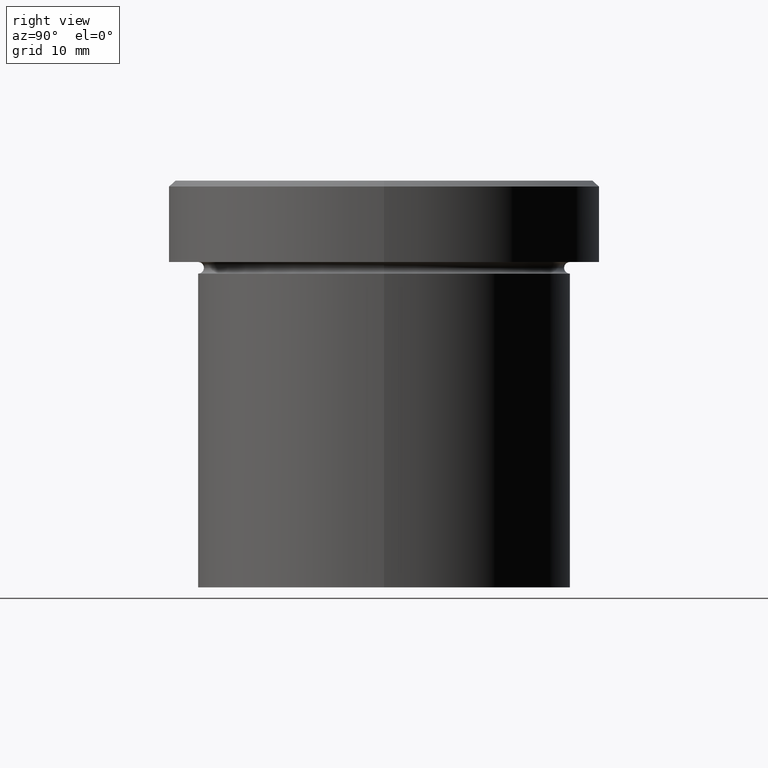
[diagram: clean part render]
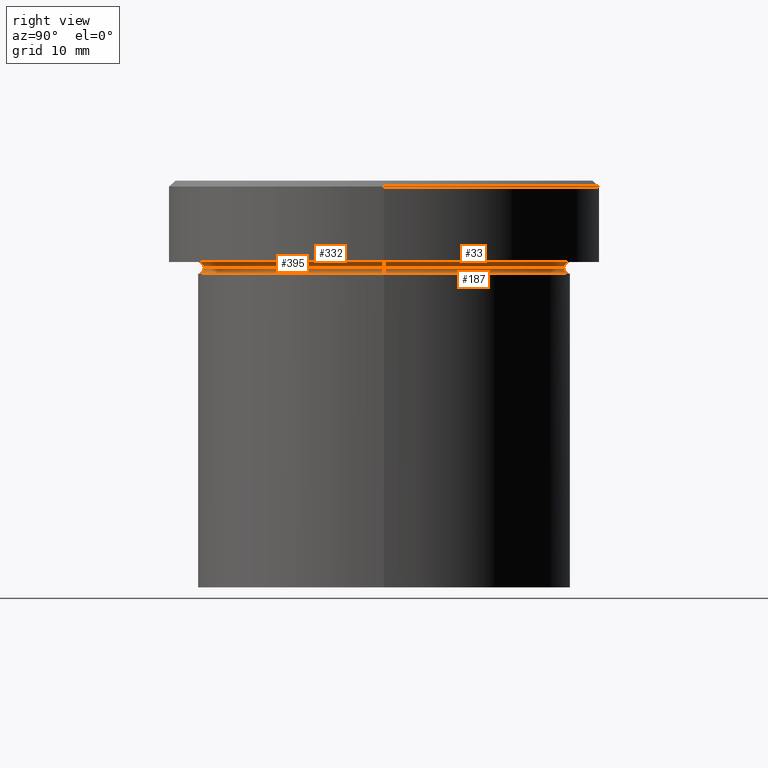
[diagram: same view with one multi-face feature highlighted, each face labeled with its STEP entity id]
A machine part, right view. The highlighted faces form ONE feature: a constant-radius fillet chain: 4 tangent blend faces with common blend radius 0.5 mm. The faces share edges in the B-rep.
Their STEP definitions:
[1] entity #187 (Torus):
#10 = VERTEX_POINT ( 'NONE', #344 ) ;
#34 = DIRECTION ( 'NONE',  ( 1.000000000000000000, 0.000000000000000000, 0.000000000000000000 ) ) ;
#37 = DIRECTION ( 'NONE',  ( 1.000000000000000000, 0.000000000000000000, 0.000000000000000000 ) ) ;
#44 = ORIENTED_EDGE ( 'NONE', *, *, #92, .T. ) ;
#47 = AXIS2_PLACEMENT_3D ( 'NONE', #81, #310, #271 ) ;
#49 = ORIENTED_EDGE ( 'NONE', *, *, #285, .T. ) ;
#51 = ORIENTED_EDGE ( 'NONE', *, *, #75, .F. ) ;
#69 = DIRECTION ( 'NONE',  ( 0.000000000000000000, -1.000000000000000000, 0.000000000000000000 ) ) ;
#75 = EDGE_CURVE ( 'NONE', #106, #140, #208, .T. ) ;
#77 = TOROIDAL_SURFACE ( 'NONE', #130, 16.00000000000000000, 0.5000000000000000000 ) ;
#81 = CARTESIAN_POINT ( 'NONE',  ( -16.00000000000000000, 1.959434878635765131E-15, -7.500000000000000000 ) ) ;
#92 = EDGE_CURVE ( 'NONE', #10, #229, #96, .T. ) ;
#96 = CIRCLE ( 'NONE', #179, 16.00000000000000000 ) ;
#99 = DIRECTION ( 'NONE',  ( -0.000000000000000000, -0.000000000000000000, 1.000000000000000000 ) ) ;
#105 = ORIENTED_EDGE ( 'NONE', *, *, #210, .F. ) ;
#106 = VERTEX_POINT ( 'NONE', #134 ) ;
#130 = AXIS2_PLACEMENT_3D ( 'NONE', #176, #207, #275 ) ;
#132 = DIRECTION ( 'NONE',  ( 0.000000000000000000, 0.000000000000000000, -1.000000000000000000 ) ) ;
#134 = CARTESIAN_POINT ( 'NONE',  ( 15.50000000000000000, 0.000000000000000000, -7.500000000000000000 ) ) ;
#140 = VERTEX_POINT ( 'NONE', #243 ) ;
#152 = CARTESIAN_POINT ( 'NONE',  ( -16.00000000000000000, 1.959434878635765131E-15, -8.000000000000000000 ) ) ;
#176 = CARTESIAN_POINT ( 'NONE',  ( 0.000000000000000000, 0.000000000000000000, -7.500000000000000000 ) ) ;
#179 = AXIS2_PLACEMENT_3D ( 'NONE', #292, #199, #37 ) ;
#187 = ADVANCED_FACE ( 'NONE', ( #242 ), #77, .F. ) ;
#199 = DIRECTION ( 'NONE',  ( -0.000000000000000000, -0.000000000000000000, 1.000000000000000000 ) ) ;
#207 = DIRECTION ( 'NONE',  ( -0.000000000000000000, -0.000000000000000000, 1.000000000000000000 ) ) ;
#208 = CIRCLE ( 'NONE', #312, 15.50000000000000000 ) ;
#210 = EDGE_CURVE ( 'NONE', #140, #229, #408, .T. ) ;
#216 = CIRCLE ( 'NONE', #306, 0.5000000000000004441 ) ;
#223 = CARTESIAN_POINT ( 'NONE',  ( 16.00000000000000000, 0.000000000000000000, -7.500000000000000000 ) ) ;
#229 = VERTEX_POINT ( 'NONE', #152 ) ;
#242 = FACE_OUTER_BOUND ( 'NONE', #307, .T. ) ;
#243 = CARTESIAN_POINT ( 'NONE',  ( -15.50000000000000000, 1.928818708657081344E-15, -7.500000000000000000 ) ) ;
#271 = DIRECTION ( 'NONE',  ( -1.000000000000000000, 1.224646799147349509E-16, 0.000000000000000000 ) ) ;
#275 = DIRECTION ( 'NONE',  ( 1.000000000000000000, 0.000000000000000000, 0.000000000000000000 ) ) ;
#285 = EDGE_CURVE ( 'NONE', #106, #10, #216, .T. ) ;
#292 = CARTESIAN_POINT ( 'NONE',  ( 0.000000000000000000, 0.000000000000000000, -8.000000000000000000 ) ) ;
#306 = AXIS2_PLACEMENT_3D ( 'NONE', #223, #69, #132 ) ;
#307 = EDGE_LOOP ( 'NONE', ( #105, #51, #49, #44 ) ) ;
#310 = DIRECTION ( 'NONE',  ( 1.224646799147353207E-16, 1.000000000000000000, 0.000000000000000000 ) ) ;
#312 = AXIS2_PLACEMENT_3D ( 'NONE', #389, #99, #34 ) ;
#344 = CARTESIAN_POINT ( 'NONE',  ( 16.00000000000000000, 0.000000000000000000, -8.000000000000000000 ) ) ;
#389 = CARTESIAN_POINT ( 'NONE',  ( 0.000000000000000000, 0.000000000000000000, -7.500000000000000000 ) ) ;
#408 = CIRCLE ( 'NONE', #47, 0.5000000000000004441 ) ;
[2] entity #33 (Torus):
#29 = CARTESIAN_POINT ( 'NONE',  ( 16.00000000000000000, 1.959434878635765131E-15, -6.999999999999999112 ) ) ;
#30 = DIRECTION ( 'NONE',  ( -1.000000000000000000, 0.000000000000000000, 0.000000000000000000 ) ) ;
#32 = CARTESIAN_POINT ( 'NONE',  ( 0.000000000000000000, 0.000000000000000000, -7.500000000000000000 ) ) ;
#33 = ADVANCED_FACE ( 'NONE', ( #281 ), #277, .F. ) ;
#34 = DIRECTION ( 'NONE',  ( 1.000000000000000000, 0.000000000000000000, 0.000000000000000000 ) ) ;
#67 = EDGE_CURVE ( 'NONE', #106, #359, #262, .T. ) ;
#75 = EDGE_CURVE ( 'NONE', #106, #140, #208, .T. ) ;
#83 = CARTESIAN_POINT ( 'NONE',  ( -16.00000000000000000, 0.000000000000000000, -7.500000000000000000 ) ) ;
#99 = DIRECTION ( 'NONE',  ( -0.000000000000000000, -0.000000000000000000, 1.000000000000000000 ) ) ;
#106 = VERTEX_POINT ( 'NONE', #134 ) ;
#107 = AXIS2_PLACEMENT_3D ( 'NONE', #83, #116, #331 ) ;
#115 = VERTEX_POINT ( 'NONE', #358 ) ;
#116 = DIRECTION ( 'NONE',  ( -0.000000000000000000, -1.000000000000000000, -0.000000000000000000 ) ) ;
#124 = DIRECTION ( 'NONE',  ( -1.000000000000000000, 0.000000000000000000, 0.000000000000000000 ) ) ;
#125 = DIRECTION ( 'NONE',  ( 0.000000000000000000, 0.000000000000000000, -1.000000000000000000 ) ) ;
#134 = CARTESIAN_POINT ( 'NONE',  ( 15.50000000000000000, 0.000000000000000000, -7.500000000000000000 ) ) ;
#140 = VERTEX_POINT ( 'NONE', #243 ) ;
#150 = ORIENTED_EDGE ( 'NONE', *, *, #180, .T. ) ;
#180 = EDGE_CURVE ( 'NONE', #140, #115, #388, .T. ) ;
#197 = CARTESIAN_POINT ( 'NONE',  ( 0.000000000000000000, 0.000000000000000000, -6.999999999999999112 ) ) ;
#208 = CIRCLE ( 'NONE', #312, 15.50000000000000000 ) ;
#213 = AXIS2_PLACEMENT_3D ( 'NONE', #32, #125, #30 ) ;
#224 = AXIS2_PLACEMENT_3D ( 'NONE', #197, #386, #124 ) ;
#236 = ORIENTED_EDGE ( 'NONE', *, *, #67, .F. ) ;
#243 = CARTESIAN_POINT ( 'NONE',  ( -15.50000000000000000, 1.928818708657081344E-15, -7.500000000000000000 ) ) ;
#251 = CIRCLE ( 'NONE', #224, 16.00000000000000000 ) ;
#253 = DIRECTION ( 'NONE',  ( -1.224646799147353207E-16, 1.000000000000000000, 0.000000000000000000 ) ) ;
#262 = CIRCLE ( 'NONE', #391, 0.5000000000000004441 ) ;
#277 = TOROIDAL_SURFACE ( 'NONE', #213, 16.00000000000000000, 0.5000000000000000000 ) ;
#281 = FACE_OUTER_BOUND ( 'NONE', #299, .T. ) ;
#288 = CARTESIAN_POINT ( 'NONE',  ( 16.00000000000000000, 1.959434878635765131E-15, -7.500000000000000000 ) ) ;
#299 = EDGE_LOOP ( 'NONE', ( #236, #364, #150, #393 ) ) ;
#312 = AXIS2_PLACEMENT_3D ( 'NONE', #389, #99, #34 ) ;
#320 = DIRECTION ( 'NONE',  ( -1.000000000000000000, -1.224646799147349509E-16, 0.000000000000000000 ) ) ;
#331 = DIRECTION ( 'NONE',  ( 0.000000000000000000, 0.000000000000000000, -1.000000000000000000 ) ) ;
#351 = EDGE_CURVE ( 'NONE', #359, #115, #251, .T. ) ;
#358 = CARTESIAN_POINT ( 'NONE',  ( -16.00000000000000000, 0.000000000000000000, -6.999999999999999112 ) ) ;
#359 = VERTEX_POINT ( 'NONE', #29 ) ;
#364 = ORIENTED_EDGE ( 'NONE', *, *, #75, .T. ) ;
#386 = DIRECTION ( 'NONE',  ( -0.000000000000000000, -0.000000000000000000, 1.000000000000000000 ) ) ;
#388 = CIRCLE ( 'NONE', #107, 0.5000000000000004441 ) ;
#389 = CARTESIAN_POINT ( 'NONE',  ( 0.000000000000000000, 0.000000000000000000, -7.500000000000000000 ) ) ;
#391 = AXIS2_PLACEMENT_3D ( 'NONE', #288, #253, #320 ) ;
#393 = ORIENTED_EDGE ( 'NONE', *, *, #351, .F. ) ;
[3] entity #395 (Torus):
#4 = CARTESIAN_POINT ( 'NONE',  ( 0.000000000000000000, 0.000000000000000000, -7.500000000000000000 ) ) ;
#29 = CARTESIAN_POINT ( 'NONE',  ( 16.00000000000000000, 1.959434878635765131E-15, -6.999999999999999112 ) ) ;
#43 = TOROIDAL_SURFACE ( 'NONE', #131, 16.00000000000000000, 0.5000000000000000000 ) ;
#67 = EDGE_CURVE ( 'NONE', #106, #359, #262, .T. ) ;
#83 = CARTESIAN_POINT ( 'NONE',  ( -16.00000000000000000, 0.000000000000000000, -7.500000000000000000 ) ) ;
#106 = VERTEX_POINT ( 'NONE', #134 ) ;
#107 = AXIS2_PLACEMENT_3D ( 'NONE', #83, #116, #331 ) ;
#115 = VERTEX_POINT ( 'NONE', #358 ) ;
#116 = DIRECTION ( 'NONE',  ( -0.000000000000000000, -1.000000000000000000, -0.000000000000000000 ) ) ;
#118 = DIRECTION ( 'NONE',  ( -1.000000000000000000, 0.000000000000000000, 0.000000000000000000 ) ) ;
#122 = AXIS2_PLACEMENT_3D ( 'NONE', #300, #185, #154 ) ;
#127 = FACE_OUTER_BOUND ( 'NONE', #204, .T. ) ;
#131 = AXIS2_PLACEMENT_3D ( 'NONE', #4, #355, #162 ) ;
#134 = CARTESIAN_POINT ( 'NONE',  ( 15.50000000000000000, 0.000000000000000000, -7.500000000000000000 ) ) ;
#135 = ORIENTED_EDGE ( 'NONE', *, *, #180, .F. ) ;
#140 = VERTEX_POINT ( 'NONE', #243 ) ;
#154 = DIRECTION ( 'NONE',  ( 1.000000000000000000, 0.000000000000000000, 0.000000000000000000 ) ) ;
#162 = DIRECTION ( 'NONE',  ( -1.000000000000000000, 0.000000000000000000, 0.000000000000000000 ) ) ;
#168 = ORIENTED_EDGE ( 'NONE', *, *, #196, .F. ) ;
#175 = DIRECTION ( 'NONE',  ( -0.000000000000000000, -0.000000000000000000, 1.000000000000000000 ) ) ;
#180 = EDGE_CURVE ( 'NONE', #140, #115, #388, .T. ) ;
#185 = DIRECTION ( 'NONE',  ( -0.000000000000000000, -0.000000000000000000, 1.000000000000000000 ) ) ;
#196 = EDGE_CURVE ( 'NONE', #115, #359, #362, .T. ) ;
#204 = EDGE_LOOP ( 'NONE', ( #266, #297, #168, #135 ) ) ;
#205 = EDGE_CURVE ( 'NONE', #140, #106, #377, .T. ) ;
#243 = CARTESIAN_POINT ( 'NONE',  ( -15.50000000000000000, 1.928818708657081344E-15, -7.500000000000000000 ) ) ;
#253 = DIRECTION ( 'NONE',  ( -1.224646799147353207E-16, 1.000000000000000000, 0.000000000000000000 ) ) ;
#262 = CIRCLE ( 'NONE', #391, 0.5000000000000004441 ) ;
#266 = ORIENTED_EDGE ( 'NONE', *, *, #205, .T. ) ;
#288 = CARTESIAN_POINT ( 'NONE',  ( 16.00000000000000000, 1.959434878635765131E-15, -7.500000000000000000 ) ) ;
#297 = ORIENTED_EDGE ( 'NONE', *, *, #67, .T. ) ;
#300 = CARTESIAN_POINT ( 'NONE',  ( 0.000000000000000000, 0.000000000000000000, -7.500000000000000000 ) ) ;
#308 = CARTESIAN_POINT ( 'NONE',  ( 0.000000000000000000, 0.000000000000000000, -6.999999999999999112 ) ) ;
#320 = DIRECTION ( 'NONE',  ( -1.000000000000000000, -1.224646799147349509E-16, 0.000000000000000000 ) ) ;
#331 = DIRECTION ( 'NONE',  ( 0.000000000000000000, 0.000000000000000000, -1.000000000000000000 ) ) ;
#342 = AXIS2_PLACEMENT_3D ( 'NONE', #308, #175, #118 ) ;
#355 = DIRECTION ( 'NONE',  ( 0.000000000000000000, 0.000000000000000000, -1.000000000000000000 ) ) ;
#358 = CARTESIAN_POINT ( 'NONE',  ( -16.00000000000000000, 0.000000000000000000, -6.999999999999999112 ) ) ;
#359 = VERTEX_POINT ( 'NONE', #29 ) ;
#362 = CIRCLE ( 'NONE', #342, 16.00000000000000000 ) ;
#377 = CIRCLE ( 'NONE', #122, 15.50000000000000000 ) ;
#388 = CIRCLE ( 'NONE', #107, 0.5000000000000004441 ) ;
#391 = AXIS2_PLACEMENT_3D ( 'NONE', #288, #253, #320 ) ;
#395 = ADVANCED_FACE ( 'NONE', ( #127 ), #43, .F. ) ;
[4] entity #332 (Torus):
#8 = EDGE_CURVE ( 'NONE', #229, #10, #128, .T. ) ;
#10 = VERTEX_POINT ( 'NONE', #344 ) ;
#46 = ORIENTED_EDGE ( 'NONE', *, *, #285, .F. ) ;
#47 = AXIS2_PLACEMENT_3D ( 'NONE', #81, #310, #271 ) ;
#53 = AXIS2_PLACEMENT_3D ( 'NONE', #117, #376, #215 ) ;
#69 = DIRECTION ( 'NONE',  ( 0.000000000000000000, -1.000000000000000000, 0.000000000000000000 ) ) ;
#70 = DIRECTION ( 'NONE',  ( 1.000000000000000000, 0.000000000000000000, 0.000000000000000000 ) ) ;
#76 = ORIENTED_EDGE ( 'NONE', *, *, #210, .T. ) ;
#81 = CARTESIAN_POINT ( 'NONE',  ( -16.00000000000000000, 1.959434878635765131E-15, -7.500000000000000000 ) ) ;
#87 = EDGE_LOOP ( 'NONE', ( #138, #76, #178, #46 ) ) ;
#106 = VERTEX_POINT ( 'NONE', #134 ) ;
#117 = CARTESIAN_POINT ( 'NONE',  ( 0.000000000000000000, 0.000000000000000000, -8.000000000000000000 ) ) ;
#122 = AXIS2_PLACEMENT_3D ( 'NONE', #300, #185, #154 ) ;
#123 = AXIS2_PLACEMENT_3D ( 'NONE', #380, #250, #70 ) ;
#128 = CIRCLE ( 'NONE', #53, 16.00000000000000000 ) ;
#132 = DIRECTION ( 'NONE',  ( 0.000000000000000000, 0.000000000000000000, -1.000000000000000000 ) ) ;
#134 = CARTESIAN_POINT ( 'NONE',  ( 15.50000000000000000, 0.000000000000000000, -7.500000000000000000 ) ) ;
#138 = ORIENTED_EDGE ( 'NONE', *, *, #205, .F. ) ;
#140 = VERTEX_POINT ( 'NONE', #243 ) ;
#152 = CARTESIAN_POINT ( 'NONE',  ( -16.00000000000000000, 1.959434878635765131E-15, -8.000000000000000000 ) ) ;
#154 = DIRECTION ( 'NONE',  ( 1.000000000000000000, 0.000000000000000000, 0.000000000000000000 ) ) ;
#158 = FACE_OUTER_BOUND ( 'NONE', #87, .T. ) ;
#178 = ORIENTED_EDGE ( 'NONE', *, *, #8, .T. ) ;
#185 = DIRECTION ( 'NONE',  ( -0.000000000000000000, -0.000000000000000000, 1.000000000000000000 ) ) ;
#205 = EDGE_CURVE ( 'NONE', #140, #106, #377, .T. ) ;
#210 = EDGE_CURVE ( 'NONE', #140, #229, #408, .T. ) ;
#215 = DIRECTION ( 'NONE',  ( 1.000000000000000000, 0.000000000000000000, 0.000000000000000000 ) ) ;
#216 = CIRCLE ( 'NONE', #306, 0.5000000000000004441 ) ;
#223 = CARTESIAN_POINT ( 'NONE',  ( 16.00000000000000000, 0.000000000000000000, -7.500000000000000000 ) ) ;
#229 = VERTEX_POINT ( 'NONE', #152 ) ;
#243 = CARTESIAN_POINT ( 'NONE',  ( -15.50000000000000000, 1.928818708657081344E-15, -7.500000000000000000 ) ) ;
#250 = DIRECTION ( 'NONE',  ( -0.000000000000000000, -0.000000000000000000, 1.000000000000000000 ) ) ;
#271 = DIRECTION ( 'NONE',  ( -1.000000000000000000, 1.224646799147349509E-16, 0.000000000000000000 ) ) ;
#285 = EDGE_CURVE ( 'NONE', #106, #10, #216, .T. ) ;
#300 = CARTESIAN_POINT ( 'NONE',  ( 0.000000000000000000, 0.000000000000000000, -7.500000000000000000 ) ) ;
#306 = AXIS2_PLACEMENT_3D ( 'NONE', #223, #69, #132 ) ;
#310 = DIRECTION ( 'NONE',  ( 1.224646799147353207E-16, 1.000000000000000000, 0.000000000000000000 ) ) ;
#332 = ADVANCED_FACE ( 'NONE', ( #158 ), #343, .F. ) ;
#343 = TOROIDAL_SURFACE ( 'NONE', #123, 16.00000000000000000, 0.5000000000000000000 ) ;
#344 = CARTESIAN_POINT ( 'NONE',  ( 16.00000000000000000, 0.000000000000000000, -8.000000000000000000 ) ) ;
#376 = DIRECTION ( 'NONE',  ( -0.000000000000000000, -0.000000000000000000, 1.000000000000000000 ) ) ;
#377 = CIRCLE ( 'NONE', #122, 15.50000000000000000 ) ;
#380 = CARTESIAN_POINT ( 'NONE',  ( 0.000000000000000000, 0.000000000000000000, -7.500000000000000000 ) ) ;
#408 = CIRCLE ( 'NONE', #47, 0.5000000000000004441 ) ;